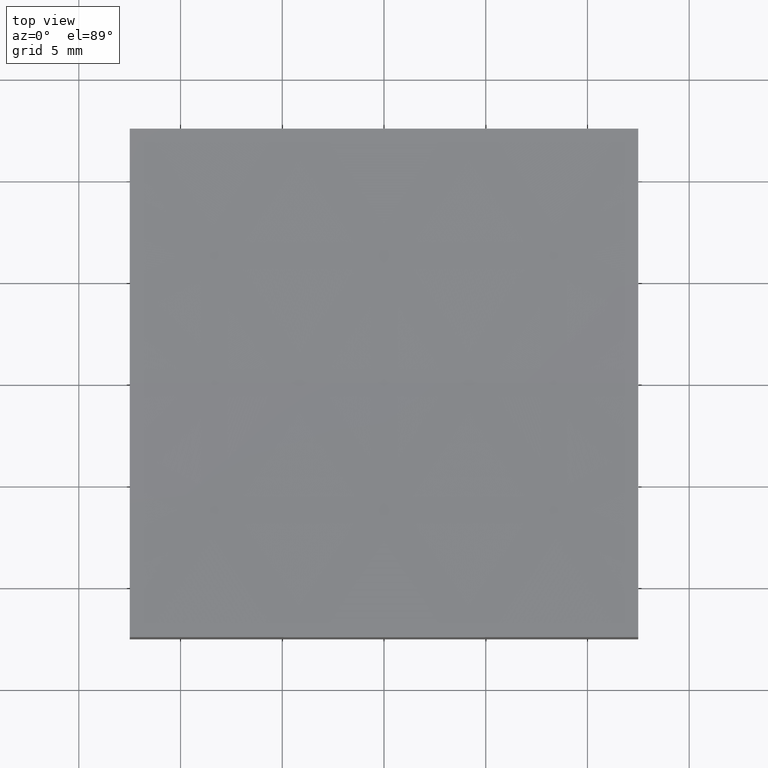
[diagram: clean part render]
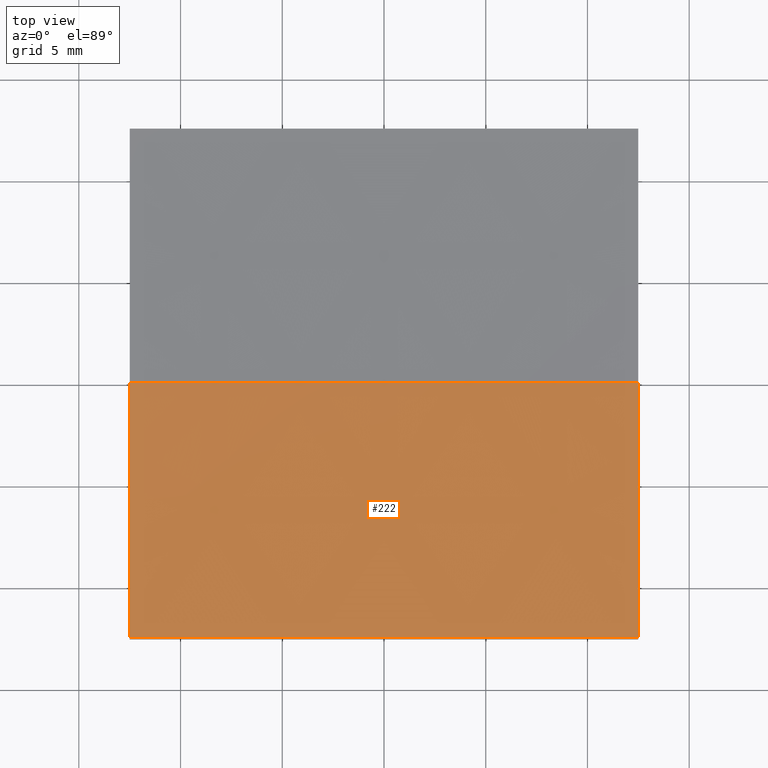
[diagram: same view with one face highlighted and labeled with its STEP entity id]
A machine part, top view. The second image highlights one B-rep face of the part: STEP entity #222.
In plain terms, the highlighted spherical surface has radius 300 mm.
Its self-contained STEP definition (entity closure, byte-faithful):
#3 = DIRECTION ( 'NONE',  ( 1.000000000000000000, 1.387778780781445676E-16, -0.0000000000000000000 ) ) ;
#7 = FACE_OUTER_BOUND ( 'NONE', #125, .T. ) ;
#8 = CARTESIAN_POINT ( 'NONE',  ( 3.747419205390901213E-14, 0.0000000000000000000, 306.0000000000000000 ) ) ;
#20 = DIRECTION ( 'NONE',  ( 0.0000000000000000000, 0.0000000000000000000, 1.000000000000000000 ) ) ;
#22 = DIRECTION ( 'NONE',  ( 0.0000000000000000000, 0.0000000000000000000, -1.000000000000000000 ) ) ;
#23 = DIRECTION ( 'NONE',  ( 1.000000000000000000, 1.387778780781445676E-16, -0.0000000000000000000 ) ) ;
#28 = ORIENTED_EDGE ( 'NONE', *, *, #100, .F. ) ;
#33 = VERTEX_POINT ( 'NONE', #134 ) ;
#35 = DIRECTION ( 'NONE',  ( -1.388985020714326984E-16, 1.000000000000000000, 0.0000000000000000000 ) ) ;
#36 = DIRECTION ( 'NONE',  ( 0.0000000000000000000, 1.000000000000000000, 0.0000000000000000000 ) ) ;
#41 = DIRECTION ( 'NONE',  ( 1.000000000000000000, 0.0000000000000000000, 0.0000000000000000000 ) ) ;
#44 = AXIS2_PLACEMENT_3D ( 'NONE', #243, #36, #20 ) ;
#45 = AXIS2_PLACEMENT_3D ( 'NONE', #88, #141, #41 ) ;
#57 = AXIS2_PLACEMENT_3D ( 'NONE', #8, #140, #22 ) ;
#60 = CARTESIAN_POINT ( 'NONE',  ( -12.50000000000000000, 1.530808498934197438E-15, 6.260529792955105144 ) ) ;
#63 = SPHERICAL_SURFACE ( 'NONE', #45, 299.9999999999999432 ) ;
#66 = CIRCLE ( 'NONE', #67, 299.7394702070449171 ) ;
#67 = AXIS2_PLACEMENT_3D ( 'NONE', #183, #23, #119 ) ;
#68 = VERTEX_POINT ( 'NONE', #115 ) ;
#72 = VERTEX_POINT ( 'NONE', #156 ) ;
#81 = EDGE_CURVE ( 'NONE', #33, #93, #139, .T. ) ;
#87 = AXIS2_PLACEMENT_3D ( 'NONE', #136, #3, #35 ) ;
#88 = CARTESIAN_POINT ( 'NONE',  ( 3.747419205390901213E-14, 0.0000000000000000000, 306.0000000000000000 ) ) ;
#93 = VERTEX_POINT ( 'NONE', #97 ) ;
#97 = CARTESIAN_POINT ( 'NONE',  ( 12.50000000000000355, 0.0000000000000000000, 6.260529792955105144 ) ) ;
#100 = EDGE_CURVE ( 'NONE', #72, #93, #220, .T. ) ;
#115 = CARTESIAN_POINT ( 'NONE',  ( -12.49999999999999645, -12.50000000000000000, 6.521286232226586321 ) ) ;
#119 = DIRECTION ( 'NONE',  ( -1.388985020714326984E-16, 1.000000000000000000, 0.0000000000000000000 ) ) ;
#121 = CARTESIAN_POINT ( 'NONE',  ( 3.747419205390901213E-14, 0.0000000000000000000, 306.0000000000000000 ) ) ;
#124 = EDGE_CURVE ( 'NONE', #72, #151, #246, .T. ) ;
#125 = EDGE_LOOP ( 'NONE', ( #28, #229, #153, #228, #130 ) ) ;
#130 = ORIENTED_EDGE ( 'NONE', *, *, #81, .T. ) ;
#134 = CARTESIAN_POINT ( 'NONE',  ( 12.50000000000000355, -12.50000000000000000, 6.521286232226586321 ) ) ;
#136 = CARTESIAN_POINT ( 'NONE',  ( 12.50000000000000178, 1.734723475976802164E-15, 306.0000000000000000 ) ) ;
#139 = CIRCLE ( 'NONE', #87, 299.7394702070449171 ) ;
#140 = DIRECTION ( 'NONE',  ( 0.0000000000000000000, -1.000000000000000000, 0.0000000000000000000 ) ) ;
#141 = DIRECTION ( 'NONE',  ( -0.0000000000000000000, 1.000000000000000000, 0.0000000000000000000 ) ) ;
#145 = CIRCLE ( 'NONE', #44, 299.7394702070449171 ) ;
#151 = VERTEX_POINT ( 'NONE', #60 ) ;
#153 = ORIENTED_EDGE ( 'NONE', *, *, #191, .F. ) ;
#155 = DIRECTION ( 'NONE',  ( -1.000000000000000000, 1.224646799147353207E-16, 0.0000000000000000000 ) ) ;
#156 = CARTESIAN_POINT ( 'NONE',  ( 6.431938274691235722E-14, 0.0000000000000000000, 6.000000000000060396 ) ) ;
#160 = EDGE_CURVE ( 'NONE', #33, #68, #145, .T. ) ;
#182 = DIRECTION ( 'NONE',  ( 1.224646799147353207E-16, 1.000000000000000000, 3.459826704919666981E-33 ) ) ;
#183 = CARTESIAN_POINT ( 'NONE',  ( -12.49999999999999822, -1.734723475976812025E-15, 306.0000000000000000 ) ) ;
#191 = EDGE_CURVE ( 'NONE', #68, #151, #66, .T. ) ;
#205 = AXIS2_PLACEMENT_3D ( 'NONE', #121, #182, #155 ) ;
#220 = CIRCLE ( 'NONE', #57, 299.9999999999999432 ) ;
#222 = ADVANCED_FACE ( 'NONE', ( #7 ), #63, .F. ) ;
#228 = ORIENTED_EDGE ( 'NONE', *, *, #160, .F. ) ;
#229 = ORIENTED_EDGE ( 'NONE', *, *, #124, .T. ) ;
#243 = CARTESIAN_POINT ( 'NONE',  ( 3.747419205390901213E-14, -12.50000000000000000, 306.0000000000000000 ) ) ;
#246 = CIRCLE ( 'NONE', #205, 299.9999999999999432 ) ;